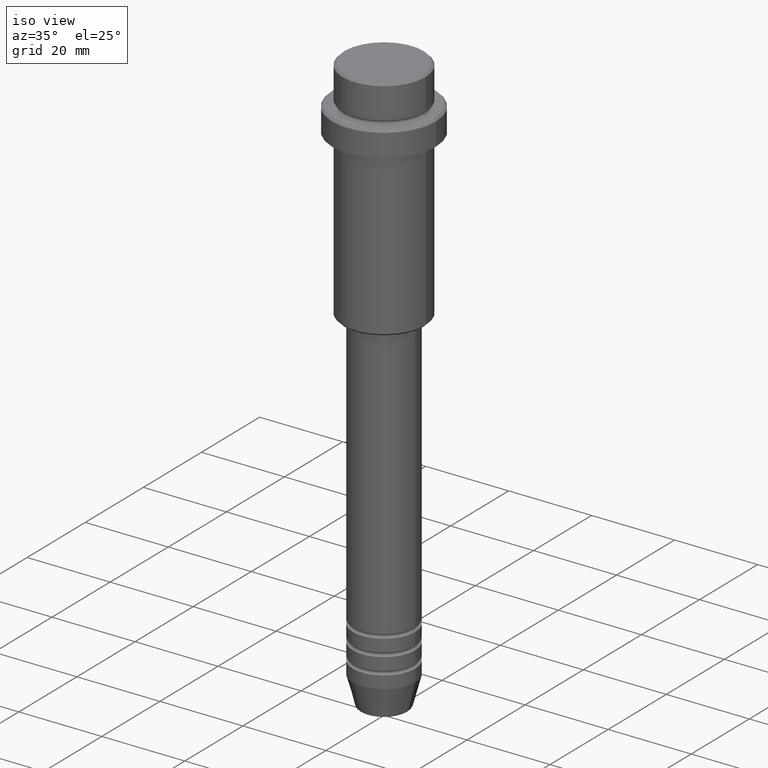
[diagram: clean part render]
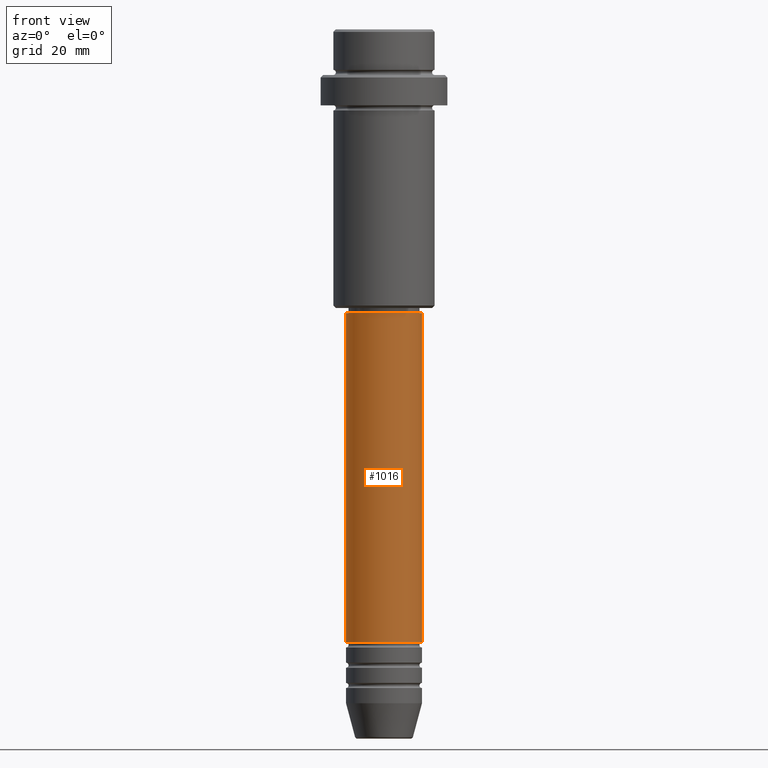
[diagram: tour spotlight — one face highlighted and labeled with its STEP entity id]
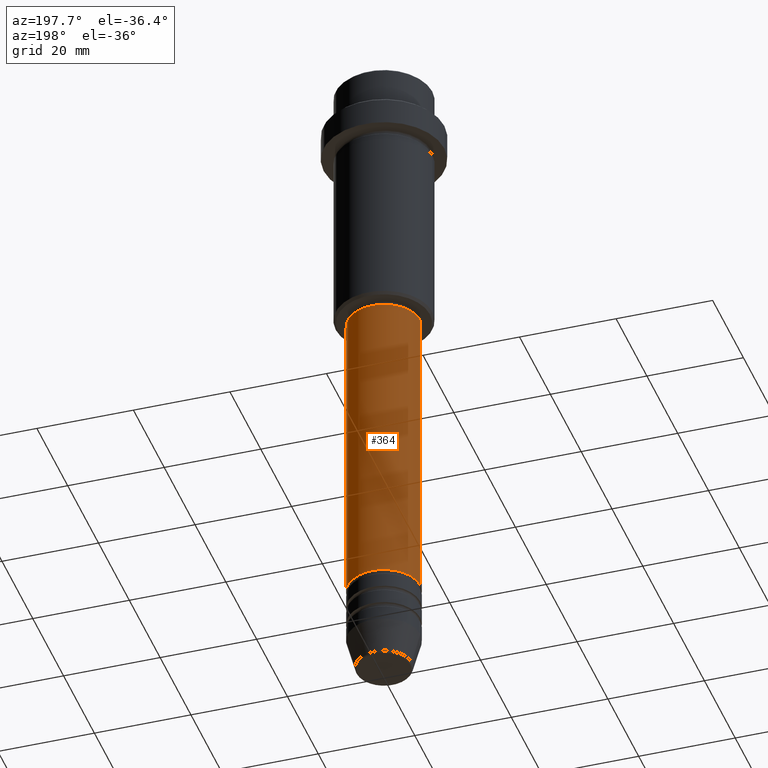
[diagram: tour spotlight — one face highlighted and labeled with its STEP entity id]
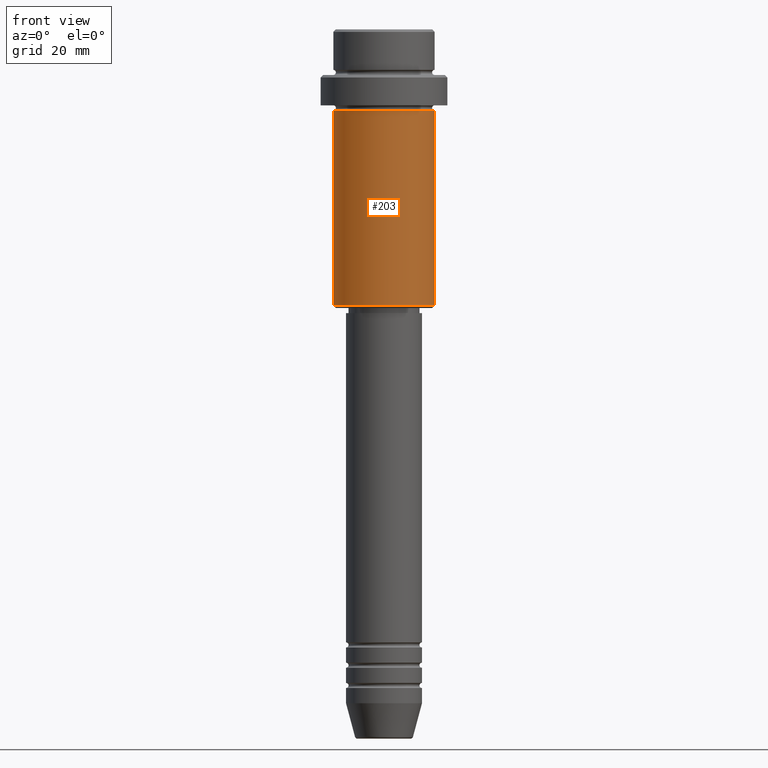
[diagram: tour spotlight — one face highlighted and labeled with its STEP entity id]
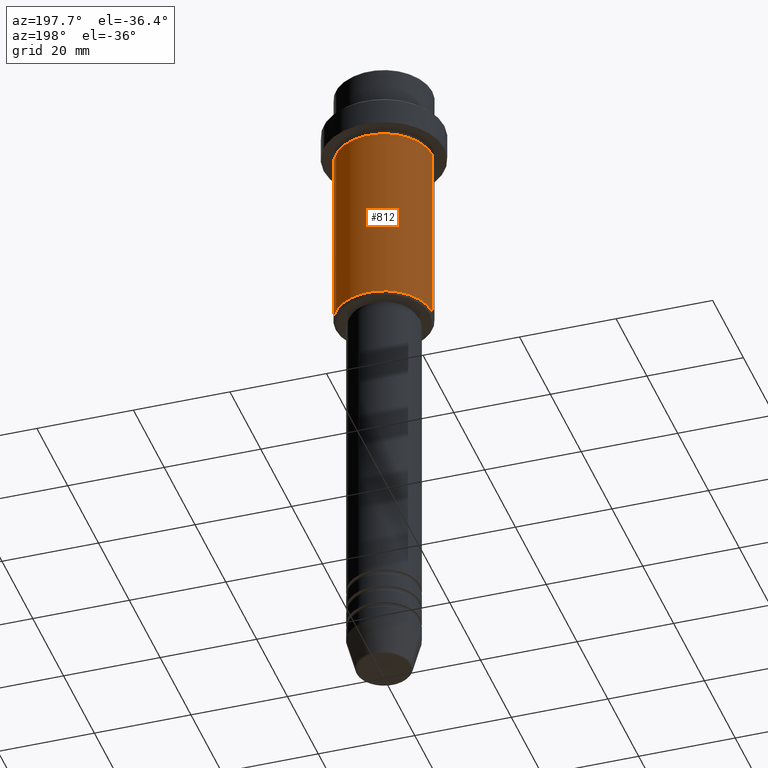
[diagram: tour spotlight — one face highlighted and labeled with its STEP entity id]
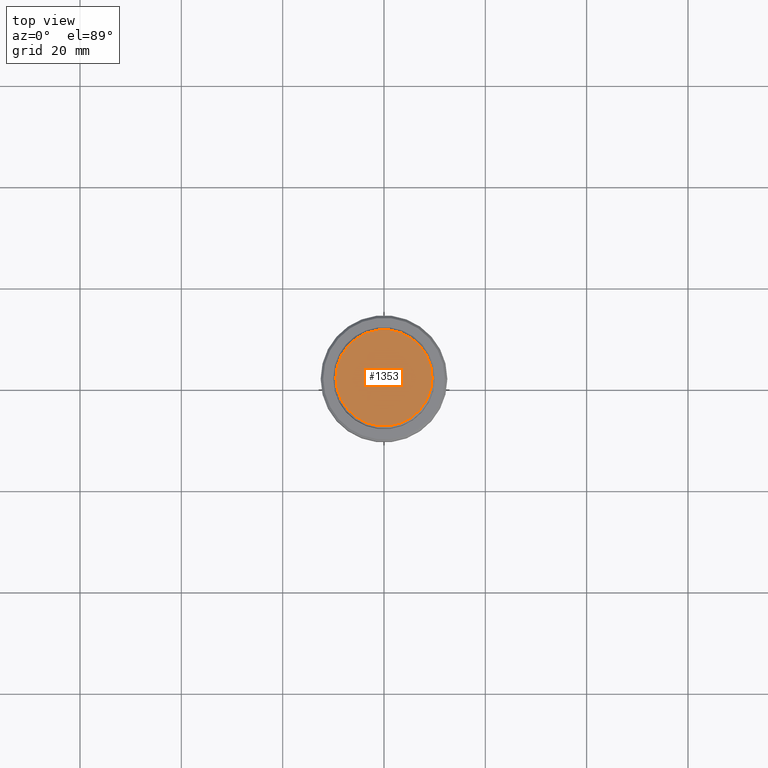
[diagram: tour spotlight — one face highlighted and labeled with its STEP entity id]
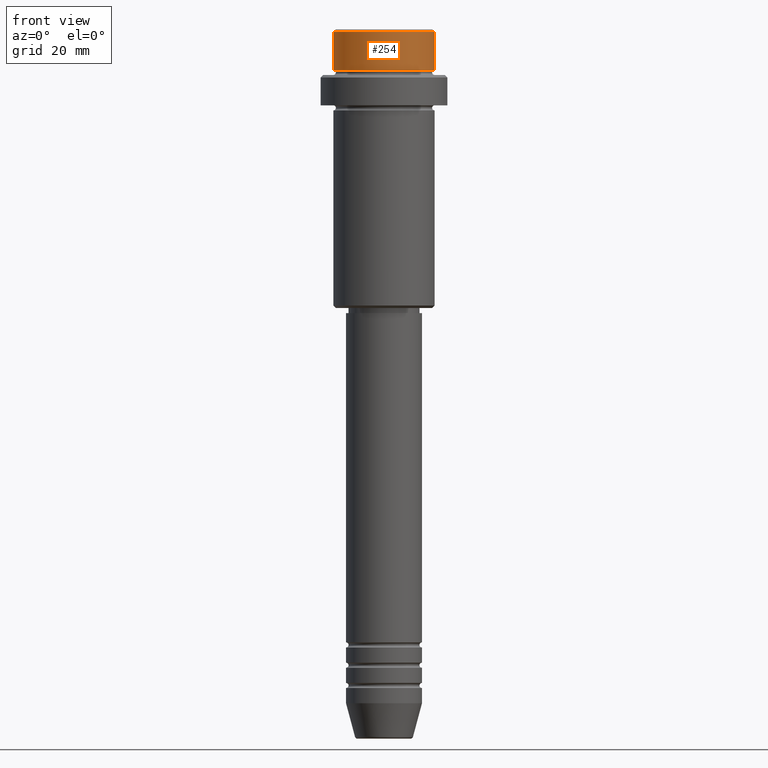
[diagram: tour spotlight — one face highlighted and labeled with its STEP entity id]
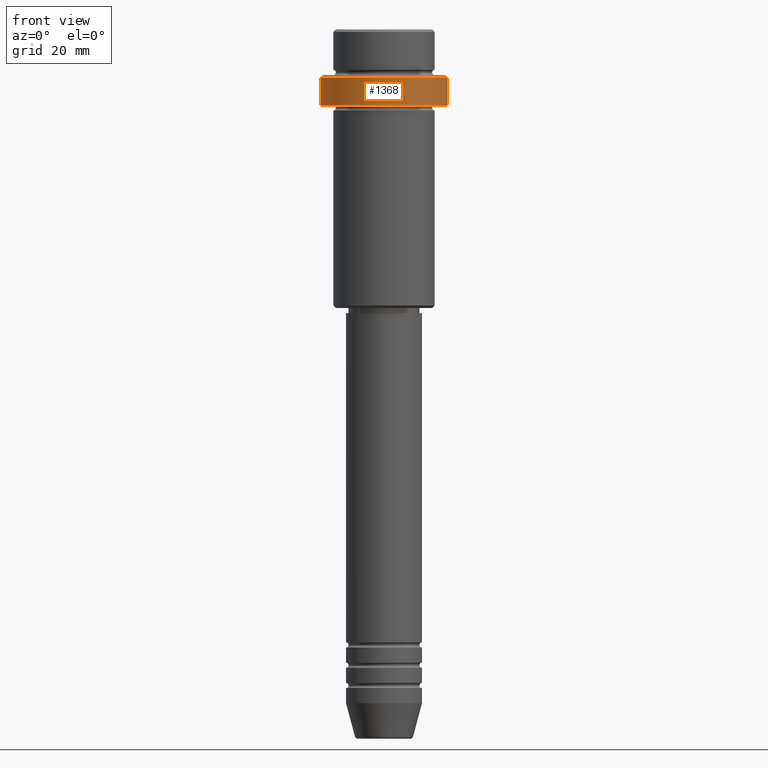
[diagram: tour spotlight — one face highlighted and labeled with its STEP entity id]
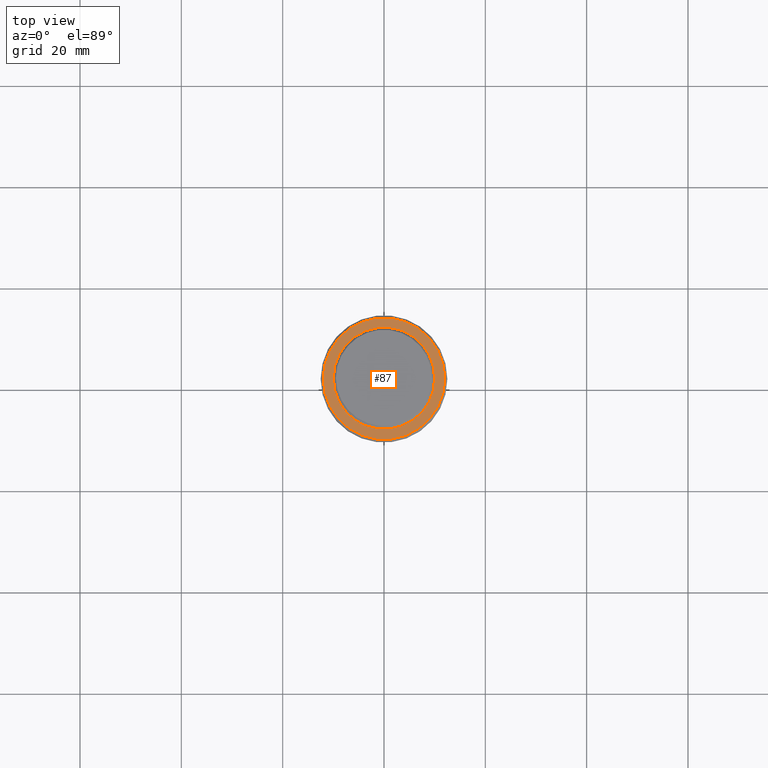
[diagram: tour spotlight — one face highlighted and labeled with its STEP entity id]
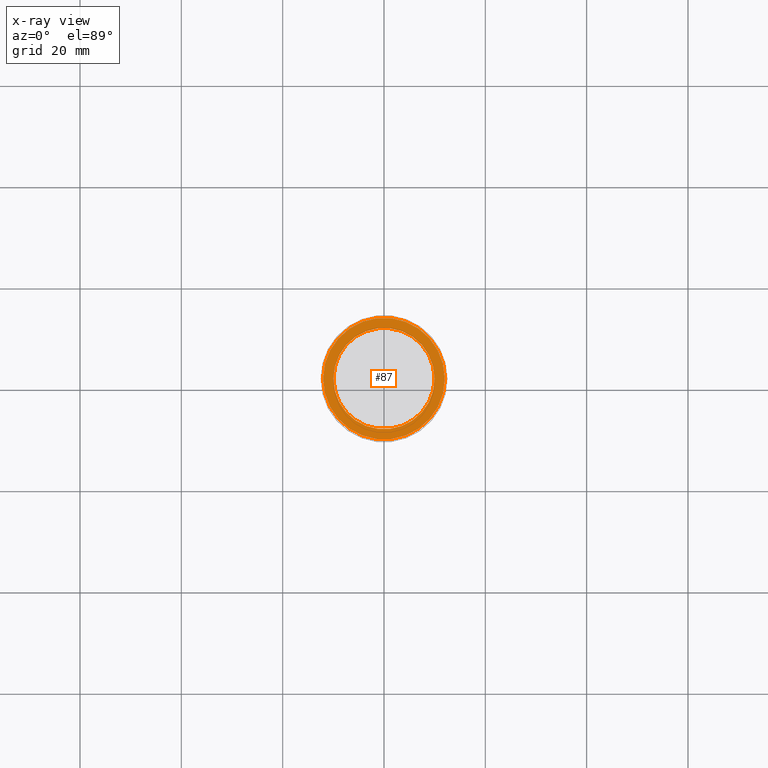
[diagram: x-ray of the same camera — body ghosted, this tour face saturated]
A machine part: a face-by-face anatomy tour. The part has 52 B-rep faces; the first image is the clean iso view, then the 8 largest visible faces are spotlighted one at a time (largest first), each with its STEP entity span.

Face 1 — front view, entity #1016. In plain terms, the highlighted cylindrical surface (partial cylindrical patch) has radius 7.5 mm, axis along (-0, -0, 1).
Definition (entity closure, byte-faithful):
#43 = VERTEX_POINT ( 'NONE', #997 ) ;
#65 = AXIS2_PLACEMENT_3D ( 'NONE', #878, #1213, #871 ) ;
#90 = ORIENTED_EDGE ( 'NONE', *, *, #1127, .F. ) ;
#108 = AXIS2_PLACEMENT_3D ( 'NONE', #677, #1000, #565 ) ;
#143 = DIRECTION ( 'NONE',  ( 1.000000000000000000, 0.000000000000000000, 0.000000000000000000 ) ) ;
#162 = EDGE_CURVE ( 'NONE', #780, #418, #279, .T. ) ;
#279 = CIRCLE ( 'NONE', #1376, 7.500000000000000000 ) ;
#335 = VECTOR ( 'NONE', #1268, 1000.000000000000000 ) ;
#368 = DIRECTION ( 'NONE',  ( -0.000000000000000000, -0.000000000000000000, 1.000000000000000000 ) ) ;
#402 = EDGE_LOOP ( 'NONE', ( #90, #1263, #883, #433 ) ) ;
#416 = CARTESIAN_POINT ( 'NONE',  ( 7.500000000000000000, 0.000000000000000000, -56.00000000000000711 ) ) ;
#418 = VERTEX_POINT ( 'NONE', #416 ) ;
#433 = ORIENTED_EDGE ( 'NONE', *, *, #162, .F. ) ;
#445 = EDGE_CURVE ( 'NONE', #43, #1086, #1035, .T. ) ;
#469 = CYLINDRICAL_SURFACE ( 'NONE', #108, 7.500000000000000000 ) ;
#495 = CARTESIAN_POINT ( 'NONE',  ( -7.500000000000000000, 9.184850993605147944E-16, -56.00000000000000711 ) ) ;
#565 = DIRECTION ( 'NONE',  ( 1.000000000000000000, 0.000000000000000000, 0.000000000000000000 ) ) ;
#592 = VECTOR ( 'NONE', #368, 1000.000000000000000 ) ;
#677 = CARTESIAN_POINT ( 'NONE',  ( 0.000000000000000000, 0.000000000000000000, 0.000000000000000000 ) ) ;
#687 = CARTESIAN_POINT ( 'NONE',  ( -7.500000000000000000, 9.184850993605147944E-16, 0.000000000000000000 ) ) ;
#706 = LINE ( 'NONE', #687, #592 ) ;
#708 = CARTESIAN_POINT ( 'NONE',  ( 0.000000000000000000, 0.000000000000000000, -56.00000000000000711 ) ) ;
#761 = EDGE_CURVE ( 'NONE', #1086, #418, #1147, .T. ) ;
#780 = VERTEX_POINT ( 'NONE', #495 ) ;
#871 = DIRECTION ( 'NONE',  ( 1.000000000000000000, 0.000000000000000000, 0.000000000000000000 ) ) ;
#878 = CARTESIAN_POINT ( 'NONE',  ( 0.000000000000000000, 0.000000000000000000, -120.9999999999999005 ) ) ;
#883 = ORIENTED_EDGE ( 'NONE', *, *, #761, .T. ) ;
#997 = CARTESIAN_POINT ( 'NONE',  ( -7.500000000000000000, 9.184850993605147944E-16, -120.9999999999999005 ) ) ;
#1000 = DIRECTION ( 'NONE',  ( -0.000000000000000000, -0.000000000000000000, 1.000000000000000000 ) ) ;
#1012 = FACE_OUTER_BOUND ( 'NONE', #402, .T. ) ;
#1016 = ADVANCED_FACE ( 'NONE', ( #1012 ), #469, .T. ) ;
#1035 = CIRCLE ( 'NONE', #65, 7.500000000000000000 ) ;
#1086 = VERTEX_POINT ( 'NONE', #1356 ) ;
#1127 = EDGE_CURVE ( 'NONE', #43, #780, #706, .T. ) ;
#1147 = LINE ( 'NONE', #1168, #335 ) ;
#1168 = CARTESIAN_POINT ( 'NONE',  ( 7.500000000000000000, 0.000000000000000000, 0.000000000000000000 ) ) ;
#1213 = DIRECTION ( 'NONE',  ( -0.000000000000000000, -0.000000000000000000, 1.000000000000000000 ) ) ;
#1240 = DIRECTION ( 'NONE',  ( -0.000000000000000000, -0.000000000000000000, 1.000000000000000000 ) ) ;
#1263 = ORIENTED_EDGE ( 'NONE', *, *, #445, .T. ) ;
#1268 = DIRECTION ( 'NONE',  ( -0.000000000000000000, -0.000000000000000000, 1.000000000000000000 ) ) ;
#1356 = CARTESIAN_POINT ( 'NONE',  ( 7.500000000000000000, 0.000000000000000000, -120.9999999999999005 ) ) ;
#1376 = AXIS2_PLACEMENT_3D ( 'NONE', #708, #1240, #143 ) ;

Face 2 — auxiliary view, entity #364. In plain terms, the highlighted cylindrical surface (partial cylindrical patch) has radius 7.5 mm, axis along (-0, -0, 1).
Definition (entity closure, byte-faithful):
#9 = DIRECTION ( 'NONE',  ( 1.000000000000000000, 0.000000000000000000, 0.000000000000000000 ) ) ;
#13 = AXIS2_PLACEMENT_3D ( 'NONE', #1095, #1417, #9 ) ;
#43 = VERTEX_POINT ( 'NONE', #997 ) ;
#53 = EDGE_CURVE ( 'NONE', #1086, #43, #632, .T. ) ;
#67 = DIRECTION ( 'NONE',  ( -0.000000000000000000, -0.000000000000000000, 1.000000000000000000 ) ) ;
#123 = ORIENTED_EDGE ( 'NONE', *, *, #1302, .F. ) ;
#157 = CIRCLE ( 'NONE', #252, 7.500000000000000000 ) ;
#177 = FACE_OUTER_BOUND ( 'NONE', #1099, .T. ) ;
#252 = AXIS2_PLACEMENT_3D ( 'NONE', #1372, #67, #391 ) ;
#286 = DIRECTION ( 'NONE',  ( 1.000000000000000000, 0.000000000000000000, 0.000000000000000000 ) ) ;
#335 = VECTOR ( 'NONE', #1268, 1000.000000000000000 ) ;
#364 = ADVANCED_FACE ( 'NONE', ( #177 ), #1279, .T. ) ;
#368 = DIRECTION ( 'NONE',  ( -0.000000000000000000, -0.000000000000000000, 1.000000000000000000 ) ) ;
#391 = DIRECTION ( 'NONE',  ( 1.000000000000000000, 0.000000000000000000, 0.000000000000000000 ) ) ;
#416 = CARTESIAN_POINT ( 'NONE',  ( 7.500000000000000000, 0.000000000000000000, -56.00000000000000711 ) ) ;
#418 = VERTEX_POINT ( 'NONE', #416 ) ;
#424 = ORIENTED_EDGE ( 'NONE', *, *, #53, .T. ) ;
#495 = CARTESIAN_POINT ( 'NONE',  ( -7.500000000000000000, 9.184850993605147944E-16, -56.00000000000000711 ) ) ;
#592 = VECTOR ( 'NONE', #368, 1000.000000000000000 ) ;
#616 = AXIS2_PLACEMENT_3D ( 'NONE', #944, #1396, #286 ) ;
#632 = CIRCLE ( 'NONE', #13, 7.500000000000000000 ) ;
#687 = CARTESIAN_POINT ( 'NONE',  ( -7.500000000000000000, 9.184850993605147944E-16, 0.000000000000000000 ) ) ;
#706 = LINE ( 'NONE', #687, #592 ) ;
#761 = EDGE_CURVE ( 'NONE', #1086, #418, #1147, .T. ) ;
#780 = VERTEX_POINT ( 'NONE', #495 ) ;
#850 = ORIENTED_EDGE ( 'NONE', *, *, #1127, .T. ) ;
#944 = CARTESIAN_POINT ( 'NONE',  ( 0.000000000000000000, 0.000000000000000000, 0.000000000000000000 ) ) ;
#997 = CARTESIAN_POINT ( 'NONE',  ( -7.500000000000000000, 9.184850993605147944E-16, -120.9999999999999005 ) ) ;
#1086 = VERTEX_POINT ( 'NONE', #1356 ) ;
#1095 = CARTESIAN_POINT ( 'NONE',  ( 0.000000000000000000, 0.000000000000000000, -120.9999999999999005 ) ) ;
#1099 = EDGE_LOOP ( 'NONE', ( #424, #850, #123, #1113 ) ) ;
#1113 = ORIENTED_EDGE ( 'NONE', *, *, #761, .F. ) ;
#1127 = EDGE_CURVE ( 'NONE', #43, #780, #706, .T. ) ;
#1147 = LINE ( 'NONE', #1168, #335 ) ;
#1168 = CARTESIAN_POINT ( 'NONE',  ( 7.500000000000000000, 0.000000000000000000, 0.000000000000000000 ) ) ;
#1268 = DIRECTION ( 'NONE',  ( -0.000000000000000000, -0.000000000000000000, 1.000000000000000000 ) ) ;
#1279 = CYLINDRICAL_SURFACE ( 'NONE', #616, 7.500000000000000000 ) ;
#1302 = EDGE_CURVE ( 'NONE', #418, #780, #157, .T. ) ;
#1356 = CARTESIAN_POINT ( 'NONE',  ( 7.500000000000000000, 0.000000000000000000, -120.9999999999999005 ) ) ;
#1372 = CARTESIAN_POINT ( 'NONE',  ( 0.000000000000000000, 0.000000000000000000, -56.00000000000000711 ) ) ;
#1396 = DIRECTION ( 'NONE',  ( -0.000000000000000000, -0.000000000000000000, 1.000000000000000000 ) ) ;
#1417 = DIRECTION ( 'NONE',  ( -0.000000000000000000, -0.000000000000000000, 1.000000000000000000 ) ) ;

Face 3 — front view, entity #203. In plain terms, the highlighted cylindrical surface (partial cylindrical patch) has radius 10 mm, axis along (-0, -0, 1).
Definition (entity closure, byte-faithful):
#148 = AXIS2_PLACEMENT_3D ( 'NONE', #921, #715, #502 ) ;
#149 = FACE_OUTER_BOUND ( 'NONE', #942, .T. ) ;
#196 = AXIS2_PLACEMENT_3D ( 'NONE', #1341, #1139, #790 ) ;
#203 = ADVANCED_FACE ( 'NONE', ( #149 ), #1141, .T. ) ;
#344 = CARTESIAN_POINT ( 'NONE',  ( 9.999999999999998224, 0.000000000000000000, -16.00000000000000000 ) ) ;
#360 = VECTOR ( 'NONE', #1017, 1000.000000000000000 ) ;
#410 = ORIENTED_EDGE ( 'NONE', *, *, #1073, .T. ) ;
#458 = CARTESIAN_POINT ( 'NONE',  ( 9.999999999999998224, 0.000000000000000000, -54.50000000000000711 ) ) ;
#502 = DIRECTION ( 'NONE',  ( 1.000000000000000000, 0.000000000000000000, 0.000000000000000000 ) ) ;
#559 = VERTEX_POINT ( 'NONE', #344 ) ;
#564 = VERTEX_POINT ( 'NONE', #918 ) ;
#615 = ORIENTED_EDGE ( 'NONE', *, *, #889, .F. ) ;
#642 = DIRECTION ( 'NONE',  ( -0.000000000000000000, -0.000000000000000000, 1.000000000000000000 ) ) ;
#659 = CARTESIAN_POINT ( 'NONE',  ( 0.000000000000000000, 0.000000000000000000, -16.00000000000000000 ) ) ;
#715 = DIRECTION ( 'NONE',  ( -0.000000000000000000, -0.000000000000000000, 1.000000000000000000 ) ) ;
#754 = LINE ( 'NONE', #1187, #1364 ) ;
#775 = AXIS2_PLACEMENT_3D ( 'NONE', #659, #1214, #1314 ) ;
#790 = DIRECTION ( 'NONE',  ( -1.000000000000000000, 0.000000000000000000, 0.000000000000000000 ) ) ;
#792 = VERTEX_POINT ( 'NONE', #1158 ) ;
#796 = LINE ( 'NONE', #1244, #360 ) ;
#803 = EDGE_CURVE ( 'NONE', #792, #559, #953, .T. ) ;
#835 = ORIENTED_EDGE ( 'NONE', *, *, #1055, .T. ) ;
#889 = EDGE_CURVE ( 'NONE', #564, #792, #754, .T. ) ;
#918 = CARTESIAN_POINT ( 'NONE',  ( -9.999999999999998224, 1.224646799147353059E-15, -54.50000000000000711 ) ) ;
#921 = CARTESIAN_POINT ( 'NONE',  ( 0.000000000000000000, 0.000000000000000000, 0.000000000000000000 ) ) ;
#942 = EDGE_LOOP ( 'NONE', ( #615, #410, #835, #1331 ) ) ;
#953 = CIRCLE ( 'NONE', #775, 9.999999999999998224 ) ;
#1017 = DIRECTION ( 'NONE',  ( -0.000000000000000000, -0.000000000000000000, 1.000000000000000000 ) ) ;
#1055 = EDGE_CURVE ( 'NONE', #1148, #559, #796, .T. ) ;
#1073 = EDGE_CURVE ( 'NONE', #564, #1148, #1345, .T. ) ;
#1139 = DIRECTION ( 'NONE',  ( -0.000000000000000000, -0.000000000000000000, 1.000000000000000000 ) ) ;
#1141 = CYLINDRICAL_SURFACE ( 'NONE', #148, 9.999999999999998224 ) ;
#1148 = VERTEX_POINT ( 'NONE', #458 ) ;
#1158 = CARTESIAN_POINT ( 'NONE',  ( -9.999999999999998224, 1.224646799147353059E-15, -16.00000000000000000 ) ) ;
#1187 = CARTESIAN_POINT ( 'NONE',  ( -9.999999999999998224, 1.224646799147353059E-15, 0.000000000000000000 ) ) ;
#1214 = DIRECTION ( 'NONE',  ( -0.000000000000000000, -0.000000000000000000, 1.000000000000000000 ) ) ;
#1244 = CARTESIAN_POINT ( 'NONE',  ( 9.999999999999998224, 0.000000000000000000, 0.000000000000000000 ) ) ;
#1314 = DIRECTION ( 'NONE',  ( 1.000000000000000000, 0.000000000000000000, 0.000000000000000000 ) ) ;
#1331 = ORIENTED_EDGE ( 'NONE', *, *, #803, .F. ) ;
#1341 = CARTESIAN_POINT ( 'NONE',  ( 0.000000000000000000, 0.000000000000000000, -54.50000000000000711 ) ) ;
#1345 = CIRCLE ( 'NONE', #196, 9.999999999999998224 ) ;
#1364 = VECTOR ( 'NONE', #642, 1000.000000000000000 ) ;

Face 4 — auxiliary view, entity #812. In plain terms, the highlighted cylindrical surface (partial cylindrical patch) has radius 10 mm, axis along (-0, -0, 1).
Definition (entity closure, byte-faithful):
#14 = DIRECTION ( 'NONE',  ( 1.000000000000000000, 0.000000000000000000, 0.000000000000000000 ) ) ;
#21 = DIRECTION ( 'NONE',  ( -0.000000000000000000, -0.000000000000000000, 1.000000000000000000 ) ) ;
#124 = EDGE_LOOP ( 'NONE', ( #1398, #517, #1188, #660 ) ) ;
#223 = FACE_OUTER_BOUND ( 'NONE', #124, .T. ) ;
#237 = CYLINDRICAL_SURFACE ( 'NONE', #1067, 9.999999999999998224 ) ;
#284 = AXIS2_PLACEMENT_3D ( 'NONE', #460, #21, #14 ) ;
#344 = CARTESIAN_POINT ( 'NONE',  ( 9.999999999999998224, 0.000000000000000000, -16.00000000000000000 ) ) ;
#360 = VECTOR ( 'NONE', #1017, 1000.000000000000000 ) ;
#447 = DIRECTION ( 'NONE',  ( 1.000000000000000000, 0.000000000000000000, 0.000000000000000000 ) ) ;
#458 = CARTESIAN_POINT ( 'NONE',  ( 9.999999999999998224, 0.000000000000000000, -54.50000000000000711 ) ) ;
#460 = CARTESIAN_POINT ( 'NONE',  ( 0.000000000000000000, 0.000000000000000000, -16.00000000000000000 ) ) ;
#498 = AXIS2_PLACEMENT_3D ( 'NONE', #1397, #538, #986 ) ;
#517 = ORIENTED_EDGE ( 'NONE', *, *, #889, .T. ) ;
#538 = DIRECTION ( 'NONE',  ( -0.000000000000000000, -0.000000000000000000, 1.000000000000000000 ) ) ;
#558 = DIRECTION ( 'NONE',  ( -0.000000000000000000, -0.000000000000000000, 1.000000000000000000 ) ) ;
#559 = VERTEX_POINT ( 'NONE', #344 ) ;
#564 = VERTEX_POINT ( 'NONE', #918 ) ;
#642 = DIRECTION ( 'NONE',  ( -0.000000000000000000, -0.000000000000000000, 1.000000000000000000 ) ) ;
#660 = ORIENTED_EDGE ( 'NONE', *, *, #1055, .F. ) ;
#754 = LINE ( 'NONE', #1187, #1364 ) ;
#792 = VERTEX_POINT ( 'NONE', #1158 ) ;
#796 = LINE ( 'NONE', #1244, #360 ) ;
#812 = ADVANCED_FACE ( 'NONE', ( #223 ), #237, .T. ) ;
#831 = EDGE_CURVE ( 'NONE', #1148, #564, #1004, .T. ) ;
#867 = CIRCLE ( 'NONE', #284, 9.999999999999998224 ) ;
#889 = EDGE_CURVE ( 'NONE', #564, #792, #754, .T. ) ;
#918 = CARTESIAN_POINT ( 'NONE',  ( -9.999999999999998224, 1.224646799147353059E-15, -54.50000000000000711 ) ) ;
#978 = EDGE_CURVE ( 'NONE', #559, #792, #867, .T. ) ;
#986 = DIRECTION ( 'NONE',  ( -1.000000000000000000, 0.000000000000000000, 0.000000000000000000 ) ) ;
#1004 = CIRCLE ( 'NONE', #498, 9.999999999999998224 ) ;
#1017 = DIRECTION ( 'NONE',  ( -0.000000000000000000, -0.000000000000000000, 1.000000000000000000 ) ) ;
#1055 = EDGE_CURVE ( 'NONE', #1148, #559, #796, .T. ) ;
#1067 = AXIS2_PLACEMENT_3D ( 'NONE', #1287, #558, #447 ) ;
#1148 = VERTEX_POINT ( 'NONE', #458 ) ;
#1158 = CARTESIAN_POINT ( 'NONE',  ( -9.999999999999998224, 1.224646799147353059E-15, -16.00000000000000000 ) ) ;
#1187 = CARTESIAN_POINT ( 'NONE',  ( -9.999999999999998224, 1.224646799147353059E-15, 0.000000000000000000 ) ) ;
#1188 = ORIENTED_EDGE ( 'NONE', *, *, #978, .F. ) ;
#1244 = CARTESIAN_POINT ( 'NONE',  ( 9.999999999999998224, 0.000000000000000000, 0.000000000000000000 ) ) ;
#1287 = CARTESIAN_POINT ( 'NONE',  ( 0.000000000000000000, 0.000000000000000000, 0.000000000000000000 ) ) ;
#1364 = VECTOR ( 'NONE', #642, 1000.000000000000000 ) ;
#1397 = CARTESIAN_POINT ( 'NONE',  ( 0.000000000000000000, 0.000000000000000000, -54.50000000000000711 ) ) ;
#1398 = ORIENTED_EDGE ( 'NONE', *, *, #831, .T. ) ;

Face 5 — top view, entity #1353. In plain terms, the highlighted planar face has unit normal (0, -0, 1).
Definition (entity closure, byte-faithful):
#50 = DIRECTION ( 'NONE',  ( -0.000000000000000000, -0.000000000000000000, 1.000000000000000000 ) ) ;
#91 = CARTESIAN_POINT ( 'NONE',  ( 0.000000000000000000, 0.000000000000000000, 0.000000000000000000 ) ) ;
#191 = PLANE ( 'NONE',  #894 ) ;
#218 = EDGE_LOOP ( 'NONE', ( #1196, #751 ) ) ;
#257 = DIRECTION ( 'NONE',  ( 1.000000000000000000, 0.000000000000000000, 0.000000000000000000 ) ) ;
#303 = EDGE_CURVE ( 'NONE', #960, #1355, #888, .T. ) ;
#407 = DIRECTION ( 'NONE',  ( 1.000000000000000000, 0.000000000000000000, 0.000000000000000000 ) ) ;
#636 = CIRCLE ( 'NONE', #1006, 9.500000000000008882 ) ;
#742 = AXIS2_PLACEMENT_3D ( 'NONE', #1038, #50, #407 ) ;
#751 = ORIENTED_EDGE ( 'NONE', *, *, #303, .T. ) ;
#784 = CARTESIAN_POINT ( 'NONE',  ( 9.500000000000008882, 1.194030629168669864E-15, 0.000000000000000000 ) ) ;
#849 = CARTESIAN_POINT ( 'NONE',  ( -9.500000000000008882, 0.000000000000000000, 0.000000000000000000 ) ) ;
#857 = FACE_OUTER_BOUND ( 'NONE', #218, .T. ) ;
#888 = CIRCLE ( 'NONE', #742, 9.500000000000008882 ) ;
#894 = AXIS2_PLACEMENT_3D ( 'NONE', #91, #1283, #1385 ) ;
#909 = CARTESIAN_POINT ( 'NONE',  ( 0.000000000000000000, 0.000000000000000000, 0.000000000000000000 ) ) ;
#960 = VERTEX_POINT ( 'NONE', #784 ) ;
#1006 = AXIS2_PLACEMENT_3D ( 'NONE', #909, #1346, #257 ) ;
#1038 = CARTESIAN_POINT ( 'NONE',  ( 0.000000000000000000, 0.000000000000000000, 0.000000000000000000 ) ) ;
#1172 = EDGE_CURVE ( 'NONE', #1355, #960, #636, .T. ) ;
#1196 = ORIENTED_EDGE ( 'NONE', *, *, #1172, .T. ) ;
#1283 = DIRECTION ( 'NONE',  ( 0.000000000000000000, -0.000000000000000000, 1.000000000000000000 ) ) ;
#1346 = DIRECTION ( 'NONE',  ( -0.000000000000000000, -0.000000000000000000, 1.000000000000000000 ) ) ;
#1353 = ADVANCED_FACE ( 'NONE', ( #857 ), #191, .T. ) ;
#1355 = VERTEX_POINT ( 'NONE', #849 ) ;
#1385 = DIRECTION ( 'NONE',  ( 1.000000000000000000, 0.000000000000000000, 0.000000000000000000 ) ) ;

Face 6 — front view, entity #254. In plain terms, the highlighted cylindrical surface (partial cylindrical patch) has radius 10 mm, axis along (-0, -0, 1).
Definition (entity closure, byte-faithful):
#15 = EDGE_CURVE ( 'NONE', #444, #1117, #958, .T. ) ;
#34 = DIRECTION ( 'NONE',  ( 1.000000000000000000, 0.000000000000000000, 0.000000000000000000 ) ) ;
#42 = DIRECTION ( 'NONE',  ( 1.000000000000000000, 0.000000000000000000, 0.000000000000000000 ) ) ;
#54 = CIRCLE ( 'NONE', #1405, 9.999999999999998224 ) ;
#94 = ORIENTED_EDGE ( 'NONE', *, *, #15, .T. ) ;
#119 = CARTESIAN_POINT ( 'NONE',  ( 0.000000000000000000, 0.000000000000000000, -0.4999999999999970024 ) ) ;
#254 = ADVANCED_FACE ( 'NONE', ( #494 ), #274, .T. ) ;
#261 = DIRECTION ( 'NONE',  ( -0.000000000000000000, -0.000000000000000000, 1.000000000000000000 ) ) ;
#274 = CYLINDRICAL_SURFACE ( 'NONE', #473, 9.999999999999998224 ) ;
#307 = EDGE_LOOP ( 'NONE', ( #852, #406, #968, #94 ) ) ;
#331 = VERTEX_POINT ( 'NONE', #641 ) ;
#372 = DIRECTION ( 'NONE',  ( -0.000000000000000000, -0.000000000000000000, 1.000000000000000000 ) ) ;
#406 = ORIENTED_EDGE ( 'NONE', *, *, #581, .T. ) ;
#408 = LINE ( 'NONE', #963, #954 ) ;
#444 = VERTEX_POINT ( 'NONE', #1194 ) ;
#451 = CARTESIAN_POINT ( 'NONE',  ( 9.999999999999998224, 0.000000000000000000, -7.999999999999998224 ) ) ;
#466 = LINE ( 'NONE', #701, #893 ) ;
#471 = CARTESIAN_POINT ( 'NONE',  ( 0.000000000000000000, 0.000000000000000000, -7.999999999999998224 ) ) ;
#473 = AXIS2_PLACEMENT_3D ( 'NONE', #1018, #261, #34 ) ;
#494 = FACE_OUTER_BOUND ( 'NONE', #307, .T. ) ;
#581 = EDGE_CURVE ( 'NONE', #331, #983, #54, .T. ) ;
#582 = CARTESIAN_POINT ( 'NONE',  ( -9.999999999999998224, 1.224646799147353059E-15, -0.4999999999999970024 ) ) ;
#641 = CARTESIAN_POINT ( 'NONE',  ( -9.999999999999998224, 1.224646799147353059E-15, -7.999999999999998224 ) ) ;
#701 = CARTESIAN_POINT ( 'NONE',  ( 9.999999999999998224, 0.000000000000000000, 0.000000000000000000 ) ) ;
#788 = AXIS2_PLACEMENT_3D ( 'NONE', #119, #1221, #1343 ) ;
#852 = ORIENTED_EDGE ( 'NONE', *, *, #885, .F. ) ;
#885 = EDGE_CURVE ( 'NONE', #331, #1117, #408, .T. ) ;
#893 = VECTOR ( 'NONE', #1232, 1000.000000000000000 ) ;
#954 = VECTOR ( 'NONE', #1177, 1000.000000000000000 ) ;
#958 = CIRCLE ( 'NONE', #788, 9.999999999999998224 ) ;
#963 = CARTESIAN_POINT ( 'NONE',  ( -9.999999999999998224, 1.224646799147353059E-15, 0.000000000000000000 ) ) ;
#968 = ORIENTED_EDGE ( 'NONE', *, *, #1037, .T. ) ;
#983 = VERTEX_POINT ( 'NONE', #451 ) ;
#1018 = CARTESIAN_POINT ( 'NONE',  ( 0.000000000000000000, 0.000000000000000000, 0.000000000000000000 ) ) ;
#1037 = EDGE_CURVE ( 'NONE', #983, #444, #466, .T. ) ;
#1117 = VERTEX_POINT ( 'NONE', #582 ) ;
#1177 = DIRECTION ( 'NONE',  ( -0.000000000000000000, -0.000000000000000000, 1.000000000000000000 ) ) ;
#1194 = CARTESIAN_POINT ( 'NONE',  ( 9.999999999999998224, 0.000000000000000000, -0.4999999999999970024 ) ) ;
#1221 = DIRECTION ( 'NONE',  ( 0.000000000000000000, 0.000000000000000000, -1.000000000000000000 ) ) ;
#1232 = DIRECTION ( 'NONE',  ( -0.000000000000000000, -0.000000000000000000, 1.000000000000000000 ) ) ;
#1343 = DIRECTION ( 'NONE',  ( 1.000000000000000000, 0.000000000000000000, 0.000000000000000000 ) ) ;
#1405 = AXIS2_PLACEMENT_3D ( 'NONE', #471, #372, #42 ) ;

Face 7 — front view, entity #1368. In plain terms, the highlighted cylindrical surface (partial cylindrical patch) has radius 12.5 mm, axis along (-0, -0, 1).
Definition (entity closure, byte-faithful):
#18 = VECTOR ( 'NONE', #1389, 1000.000000000000000 ) ;
#28 = DIRECTION ( 'NONE',  ( 1.000000000000000000, 0.000000000000000000, 0.000000000000000000 ) ) ;
#66 = EDGE_CURVE ( 'NONE', #644, #718, #107, .T. ) ;
#74 = VERTEX_POINT ( 'NONE', #1013 ) ;
#83 = DIRECTION ( 'NONE',  ( -0.000000000000000000, -0.000000000000000000, 1.000000000000000000 ) ) ;
#89 = DIRECTION ( 'NONE',  ( -0.000000000000000000, -0.000000000000000000, 1.000000000000000000 ) ) ;
#107 = CIRCLE ( 'NONE', #1001, 12.50000000000000000 ) ;
#135 = VECTOR ( 'NONE', #89, 1000.000000000000000 ) ;
#185 = CARTESIAN_POINT ( 'NONE',  ( 0.000000000000000000, 0.000000000000000000, -9.500000000000031974 ) ) ;
#313 = CYLINDRICAL_SURFACE ( 'NONE', #1208, 12.50000000000000000 ) ;
#327 = CARTESIAN_POINT ( 'NONE',  ( 0.000000000000000000, 0.000000000000000000, -15.00000000000000000 ) ) ;
#437 = CARTESIAN_POINT ( 'NONE',  ( -12.50000000000000000, 1.530808498934191521E-15, 0.000000000000000000 ) ) ;
#438 = EDGE_LOOP ( 'NONE', ( #671, #768, #467, #594 ) ) ;
#467 = ORIENTED_EDGE ( 'NONE', *, *, #898, .T. ) ;
#594 = ORIENTED_EDGE ( 'NONE', *, *, #1249, .T. ) ;
#606 = DIRECTION ( 'NONE',  ( 1.000000000000000000, 0.000000000000000000, 0.000000000000000000 ) ) ;
#644 = VERTEX_POINT ( 'NONE', #1132 ) ;
#671 = ORIENTED_EDGE ( 'NONE', *, *, #949, .F. ) ;
#718 = VERTEX_POINT ( 'NONE', #721 ) ;
#721 = CARTESIAN_POINT ( 'NONE',  ( 12.50000000000000000, 0.000000000000000000, -15.00000000000000000 ) ) ;
#729 = CIRCLE ( 'NONE', #932, 12.50000000000000000 ) ;
#768 = ORIENTED_EDGE ( 'NONE', *, *, #66, .T. ) ;
#834 = CARTESIAN_POINT ( 'NONE',  ( 12.50000000000000000, 0.000000000000000000, -9.500000000000031974 ) ) ;
#881 = DIRECTION ( 'NONE',  ( -0.000000000000000000, -0.000000000000000000, 1.000000000000000000 ) ) ;
#898 = EDGE_CURVE ( 'NONE', #718, #1311, #1075, .T. ) ;
#932 = AXIS2_PLACEMENT_3D ( 'NONE', #185, #1362, #606 ) ;
#949 = EDGE_CURVE ( 'NONE', #644, #74, #1415, .T. ) ;
#966 = FACE_OUTER_BOUND ( 'NONE', #438, .T. ) ;
#1001 = AXIS2_PLACEMENT_3D ( 'NONE', #327, #881, #28 ) ;
#1013 = CARTESIAN_POINT ( 'NONE',  ( -12.50000000000000000, 1.530808498934191521E-15, -9.500000000000031974 ) ) ;
#1075 = LINE ( 'NONE', #1082, #135 ) ;
#1082 = CARTESIAN_POINT ( 'NONE',  ( 12.50000000000000000, 0.000000000000000000, 0.000000000000000000 ) ) ;
#1132 = CARTESIAN_POINT ( 'NONE',  ( -12.50000000000000000, 1.530808498934191521E-15, -15.00000000000000000 ) ) ;
#1170 = CARTESIAN_POINT ( 'NONE',  ( 0.000000000000000000, 0.000000000000000000, 0.000000000000000000 ) ) ;
#1189 = DIRECTION ( 'NONE',  ( 1.000000000000000000, 0.000000000000000000, 0.000000000000000000 ) ) ;
#1208 = AXIS2_PLACEMENT_3D ( 'NONE', #1170, #83, #1189 ) ;
#1249 = EDGE_CURVE ( 'NONE', #1311, #74, #729, .T. ) ;
#1311 = VERTEX_POINT ( 'NONE', #834 ) ;
#1362 = DIRECTION ( 'NONE',  ( 0.000000000000000000, 0.000000000000000000, -1.000000000000000000 ) ) ;
#1368 = ADVANCED_FACE ( 'NONE', ( #966 ), #313, .T. ) ;
#1389 = DIRECTION ( 'NONE',  ( -0.000000000000000000, -0.000000000000000000, 1.000000000000000000 ) ) ;
#1415 = LINE ( 'NONE', #437, #18 ) ;

Face 8 — top view, entity #87. An x-ray twin of the same camera follows (body ghosted, this face saturated) — the face is partly hidden behind the body. In plain terms, the highlighted planar face has unit normal (0, -0, 1).
Definition (entity closure, byte-faithful):
#8 = ORIENTED_EDGE ( 'NONE', *, *, #704, .T. ) ;
#33 = AXIS2_PLACEMENT_3D ( 'NONE', #929, #827, #1366 ) ;
#47 = DIRECTION ( 'NONE',  ( 1.000000000000000000, 0.000000000000000000, 0.000000000000000000 ) ) ;
#48 = ORIENTED_EDGE ( 'NONE', *, *, #681, .T. ) ;
#87 = ADVANCED_FACE ( 'NONE', ( #338, #1104 ), #808, .T. ) ;
#106 = CIRCLE ( 'NONE', #691, 11.99999999999998224 ) ;
#170 = DIRECTION ( 'NONE',  ( -0.000000000000000000, -0.000000000000000000, 1.000000000000000000 ) ) ;
#175 = VERTEX_POINT ( 'NONE', #377 ) ;
#178 = DIRECTION ( 'NONE',  ( 1.000000000000000000, 0.000000000000000000, 0.000000000000000000 ) ) ;
#183 = CARTESIAN_POINT ( 'NONE',  ( 0.000000000000000000, 0.000000000000000000, -9.000000000000000000 ) ) ;
#189 = EDGE_LOOP ( 'NONE', ( #8, #996 ) ) ;
#234 = VERTEX_POINT ( 'NONE', #583 ) ;
#259 = EDGE_CURVE ( 'NONE', #234, #350, #1020, .T. ) ;
#271 = DIRECTION ( 'NONE',  ( 1.000000000000000000, 0.000000000000000000, 0.000000000000000000 ) ) ;
#338 = FACE_OUTER_BOUND ( 'NONE', #1107, .T. ) ;
#350 = VERTEX_POINT ( 'NONE', #529 ) ;
#377 = CARTESIAN_POINT ( 'NONE',  ( 9.999999999999992895, 0.000000000000000000, -9.000000000000000000 ) ) ;
#419 = AXIS2_PLACEMENT_3D ( 'NONE', #786, #662, #551 ) ;
#529 = CARTESIAN_POINT ( 'NONE',  ( 11.99999999999998224, 1.500192328955506748E-15, -9.000000000000000000 ) ) ;
#547 = CIRCLE ( 'NONE', #869, 9.999999999999992895 ) ;
#551 = DIRECTION ( 'NONE',  ( 1.000000000000000000, 0.000000000000000000, 0.000000000000000000 ) ) ;
#583 = CARTESIAN_POINT ( 'NONE',  ( -11.99999999999998224, 0.000000000000000000, -9.000000000000000000 ) ) ;
#614 = CARTESIAN_POINT ( 'NONE',  ( -9.999999999999992895, 1.224646799147352468E-15, -9.000000000000000000 ) ) ;
#662 = DIRECTION ( 'NONE',  ( 0.000000000000000000, -0.000000000000000000, 1.000000000000000000 ) ) ;
#681 = EDGE_CURVE ( 'NONE', #350, #234, #106, .T. ) ;
#691 = AXIS2_PLACEMENT_3D ( 'NONE', #1151, #170, #47 ) ;
#704 = EDGE_CURVE ( 'NONE', #175, #1285, #1155, .T. ) ;
#786 = CARTESIAN_POINT ( 'NONE',  ( 0.000000000000000000, 9.499999999999992895, -9.000000000000000000 ) ) ;
#808 = PLANE ( 'NONE',  #419 ) ;
#827 = DIRECTION ( 'NONE',  ( -0.000000000000000000, -0.000000000000000000, 1.000000000000000000 ) ) ;
#847 = DIRECTION ( 'NONE',  ( 0.000000000000000000, 0.000000000000000000, -1.000000000000000000 ) ) ;
#869 = AXIS2_PLACEMENT_3D ( 'NONE', #1260, #1251, #271 ) ;
#929 = CARTESIAN_POINT ( 'NONE',  ( 0.000000000000000000, 0.000000000000000000, -9.000000000000000000 ) ) ;
#969 = ORIENTED_EDGE ( 'NONE', *, *, #259, .T. ) ;
#996 = ORIENTED_EDGE ( 'NONE', *, *, #1205, .T. ) ;
#1020 = CIRCLE ( 'NONE', #33, 11.99999999999998224 ) ;
#1104 = FACE_BOUND ( 'NONE', #189, .T. ) ;
#1107 = EDGE_LOOP ( 'NONE', ( #969, #48 ) ) ;
#1151 = CARTESIAN_POINT ( 'NONE',  ( 0.000000000000000000, 0.000000000000000000, -9.000000000000000000 ) ) ;
#1155 = CIRCLE ( 'NONE', #1363, 9.999999999999992895 ) ;
#1205 = EDGE_CURVE ( 'NONE', #1285, #175, #547, .T. ) ;
#1251 = DIRECTION ( 'NONE',  ( 0.000000000000000000, 0.000000000000000000, -1.000000000000000000 ) ) ;
#1260 = CARTESIAN_POINT ( 'NONE',  ( 0.000000000000000000, 0.000000000000000000, -9.000000000000000000 ) ) ;
#1285 = VERTEX_POINT ( 'NONE', #614 ) ;
#1363 = AXIS2_PLACEMENT_3D ( 'NONE', #183, #847, #178 ) ;
#1366 = DIRECTION ( 'NONE',  ( 1.000000000000000000, 0.000000000000000000, 0.000000000000000000 ) ) ;